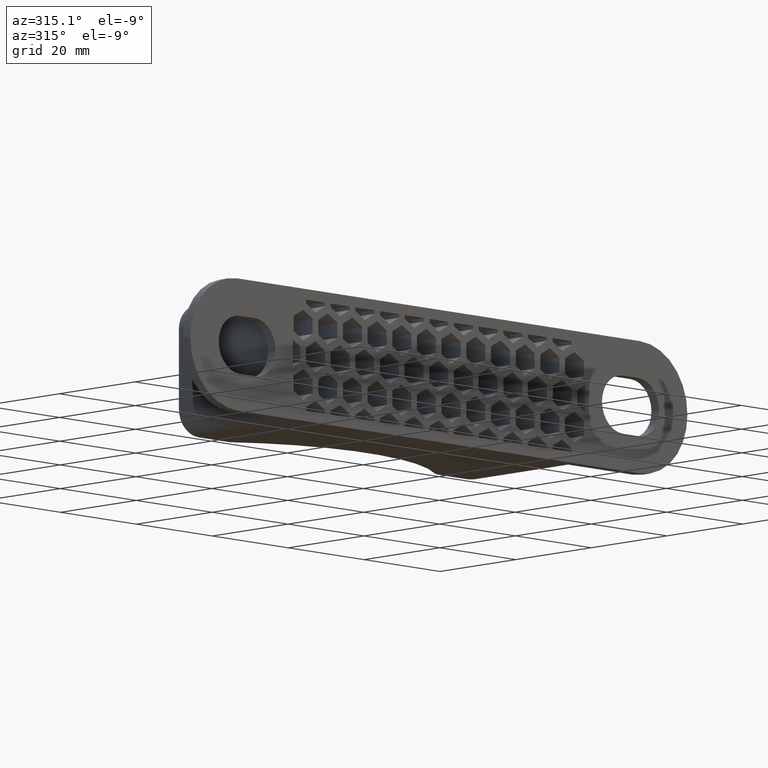
[diagram: clean part render]
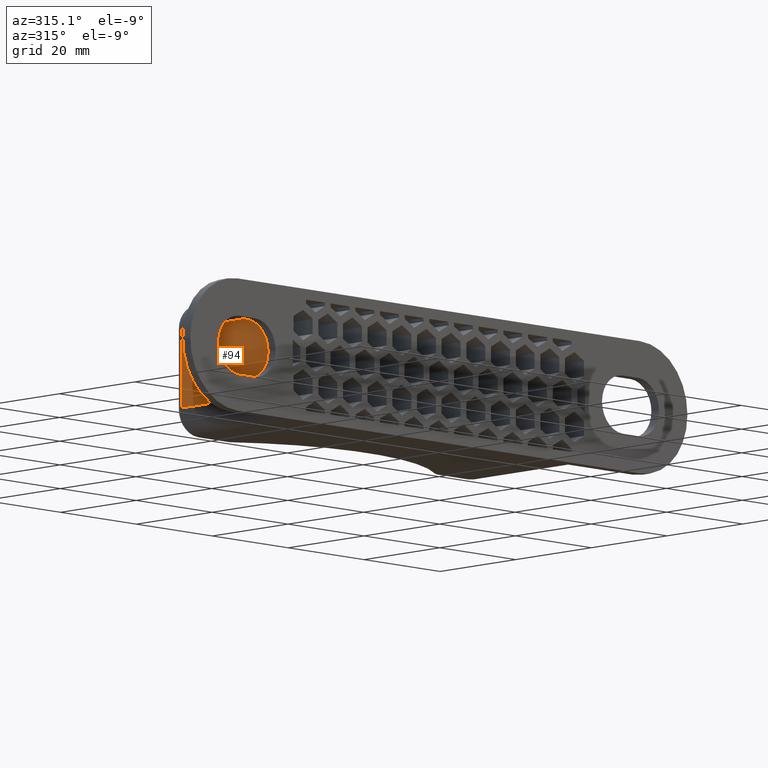
[diagram: same view with one face highlighted and labeled with its STEP entity id]
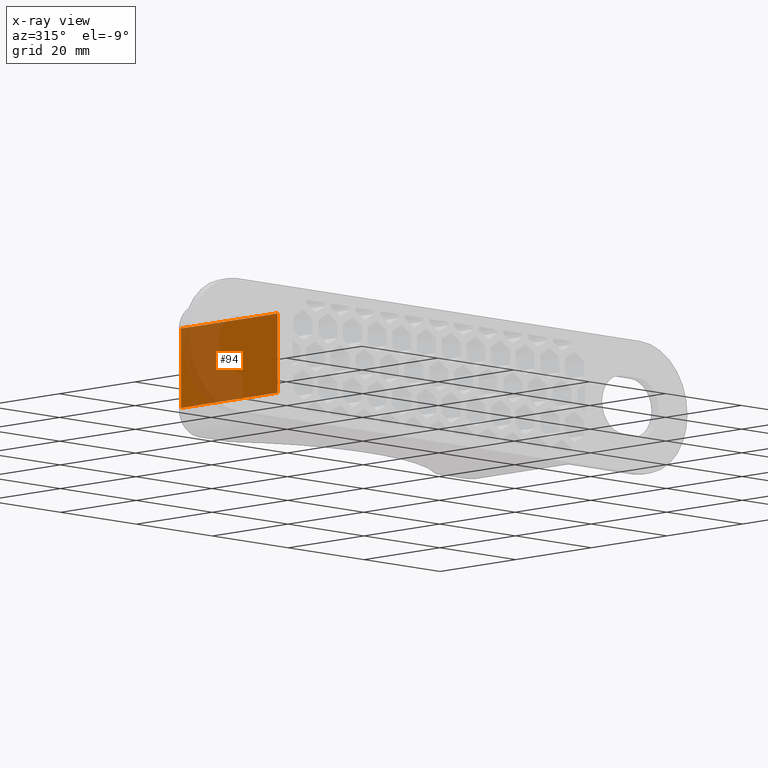
[diagram: x-ray of the same camera — body ghosted, the highlighted face saturated]
A machine part, auxiliary view. The second image highlights one B-rep face of the part: STEP entity #94.
The next image is the same camera in x-ray: the body ghosted, the highlighted face saturated — about 40% of this face is hidden behind the body in this view.
In plain terms, the highlighted planar face has unit normal (-1, 0, 0).
Its self-contained STEP definition (entity closure, byte-faithful):
#94 = ADVANCED_FACE( '', ( #658 ), #659, .T. );
#658 = FACE_OUTER_BOUND( '', #1682, .T. );
#659 = PLANE( '', #1683 );
#1682 = EDGE_LOOP( '', ( #3120, #3121, #3122, #3123 ) );
#1683 = AXIS2_PLACEMENT_3D( '', #3124, #3125, #3126 );
#3120 = ORIENTED_EDGE( '', *, *, #6896, .T. );
#3121 = ORIENTED_EDGE( '', *, *, #6870, .T. );
#3122 = ORIENTED_EDGE( '', *, *, #6897, .T. );
#3123 = ORIENTED_EDGE( '', *, *, #6898, .T. );
#3124 = CARTESIAN_POINT( '', ( -40.5000000000000, 29.0000000000000, -12.5000000000000 ) );
#3125 = DIRECTION( '', ( -1.00000000000000, 6.93889390390723E-017, 0.000000000000000 ) );
#3126 = DIRECTION( '', ( 6.93889390390723E-017, 1.00000000000000, 0.000000000000000 ) );
#6870 = EDGE_CURVE( '', #8473, #8478, #8480, .F. );
#6896 = EDGE_CURVE( '', #8523, #8473, #8524, .F. );
#6897 = EDGE_CURVE( '', #8478, #8525, #8526, .T. );
#6898 = EDGE_CURVE( '', #8525, #8523, #8527, .T. );
#8473 = VERTEX_POINT( '', #10875 );
#8478 = VERTEX_POINT( '', #10881 );
#8480 = LINE( '', #10883, #10884 );
#8523 = VERTEX_POINT( '', #10941 );
#8524 = LINE( '', #10942, #10943 );
#8525 = VERTEX_POINT( '', #10944 );
#8526 = LINE( '', #10945, #10946 );
#8527 = LINE( '', #10947, #10948 );
#10875 = CARTESIAN_POINT( '', ( -40.5000000000000, 27.5000000000000, 7.50000000000000 ) );
#10881 = CARTESIAN_POINT( '', ( -40.5000000000000, 27.5000000000000, -7.50000000000000 ) );
#10883 = CARTESIAN_POINT( '', ( -40.5000000000000, 27.5000000000000, -12.5000000000000 ) );
#10884 = VECTOR( '', #13154, 1000.00000000000 );
#10941 = CARTESIAN_POINT( '', ( -40.5000000000000, 1.99999999999999, 7.50000000000000 ) );
#10942 = CARTESIAN_POINT( '', ( -40.5000000000000, 29.0000000000000, 7.50000000000000 ) );
#10943 = VECTOR( '', #13202, 1000.00000000000 );
#10944 = CARTESIAN_POINT( '', ( -40.5000000000000, 1.99999999999999, -7.50000000000000 ) );
#10945 = CARTESIAN_POINT( '', ( -40.5000000000000, 29.0000000000000, -7.50000000000000 ) );
#10946 = VECTOR( '', #13203, 1000.00000000000 );
#10947 = CARTESIAN_POINT( '', ( -40.5000000000000, 1.99999999999999, -12.5000000000000 ) );
#10948 = VECTOR( '', #13204, 1000.00000000000 );
#13154 = DIRECTION( '', ( 0.000000000000000, 0.000000000000000, 1.00000000000000 ) );
#13202 = DIRECTION( '', ( -6.93889390390723E-017, -1.00000000000000, 0.000000000000000 ) );
#13203 = DIRECTION( '', ( -6.93889390390723E-017, -1.00000000000000, 0.000000000000000 ) );
#13204 = DIRECTION( '', ( 0.000000000000000, 0.000000000000000, 1.00000000000000 ) );